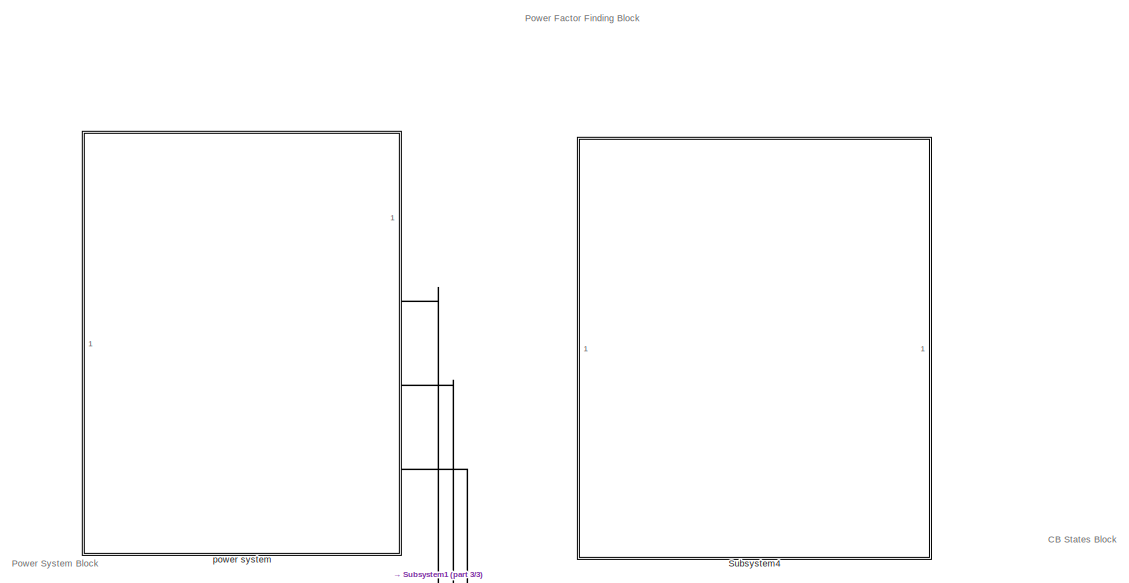
[diagram: root canvas - part 1/3, top left region]
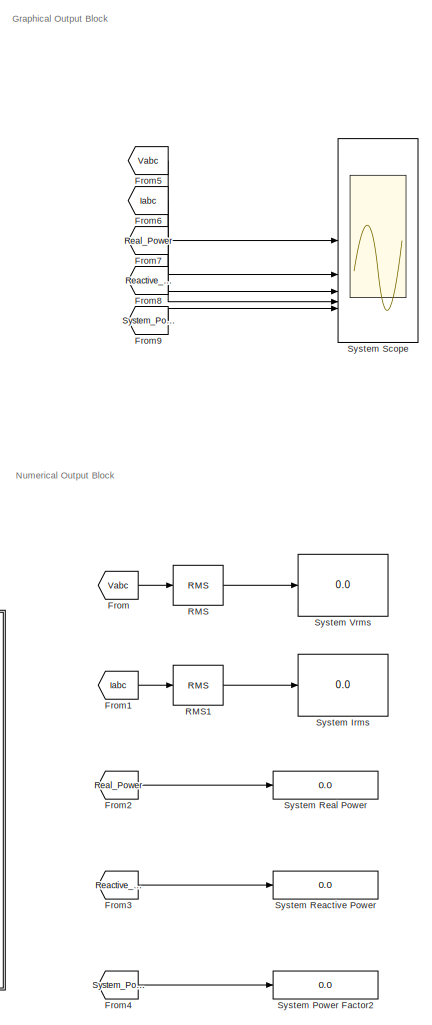
[diagram: root canvas - part 2/3, right side, full height]
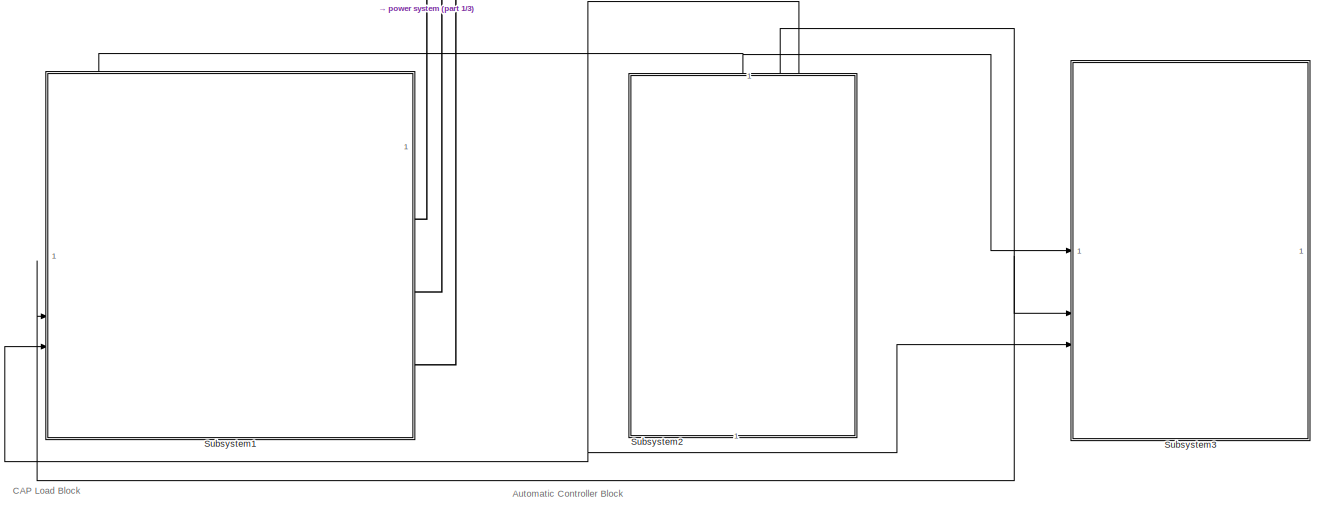
[diagram: root canvas - part 3/3, full width, bottom band]
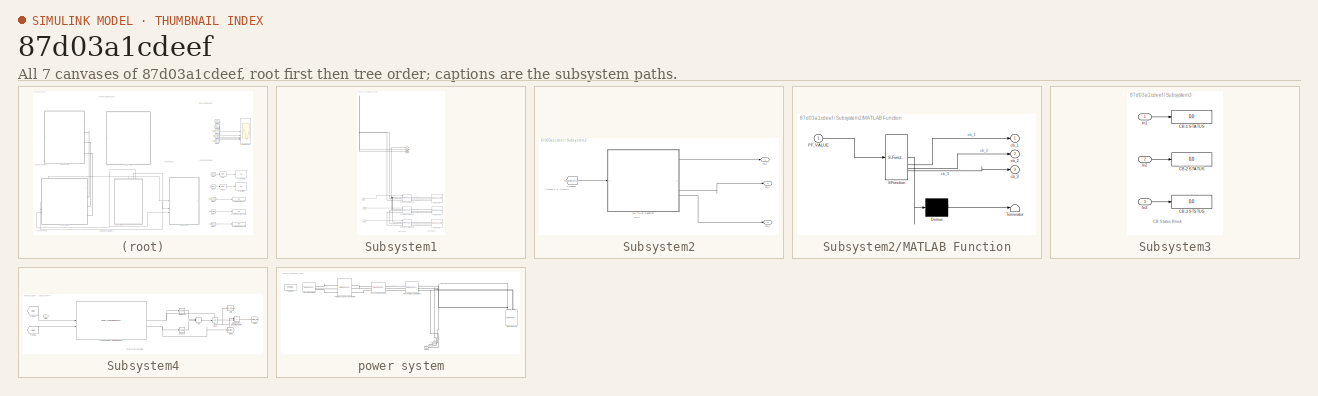
[diagram: thumbnail index - all 7 canvases of the model, root first then tree order]
MODEL slx_87d03a1cdeef
KIND model
CONFIG AbsTol = auto
CONFIG EnableMultiTasking = off
CONFIG FixedStep = auto
CONFIG MaxStep = auto
CONFIG MinStep = auto
CONFIG RelTol = 1e-3
CONFIG SampleTimeConstraint = Unconstrained
CONFIG SolverName = VariableStepAuto
CONFIG StartTime = 0.0
CONFIG StopTime = 50
BLOCK [From] From
  GotoTag = Vabc
  TagVisibility = global
BLOCK [From] From1
  GotoTag = Iabc
  TagVisibility = global
BLOCK [From] From2
  GotoTag = Real_Power
  TagVisibility = global
BLOCK [From] From3
  GotoTag = Reactive_Power
  TagVisibility = global
BLOCK [From] From4
  GotoTag = System_Power_factor
  TagVisibility = global
BLOCK [From] From5
  GotoTag = Vabc
  TagVisibility = global
BLOCK [From] From6
  GotoTag = Iabc
  TagVisibility = global
BLOCK [From] From7
  GotoTag = Real_Power
  TagVisibility = global
BLOCK [From] From8
  GotoTag = Reactive_Power
  TagVisibility = global
BLOCK [From] From9
  GotoTag = System_Power_factor
  TagVisibility = global
BLOCK [Reference] RMS  REF=spsRMSLib/RMS
  LibrarySourceBlock = sps_lib/Sensors and Measurements/RMS
  SourceBlock = spsRMSLib/RMS
  SourceType = RMS
BLOCK [Reference] RMS1  REF=spsRMSLib/RMS
  LibrarySourceBlock = sps_lib/Sensors and Measurements/RMS
  SourceBlock = spsRMSLib/RMS
  SourceType = RMS
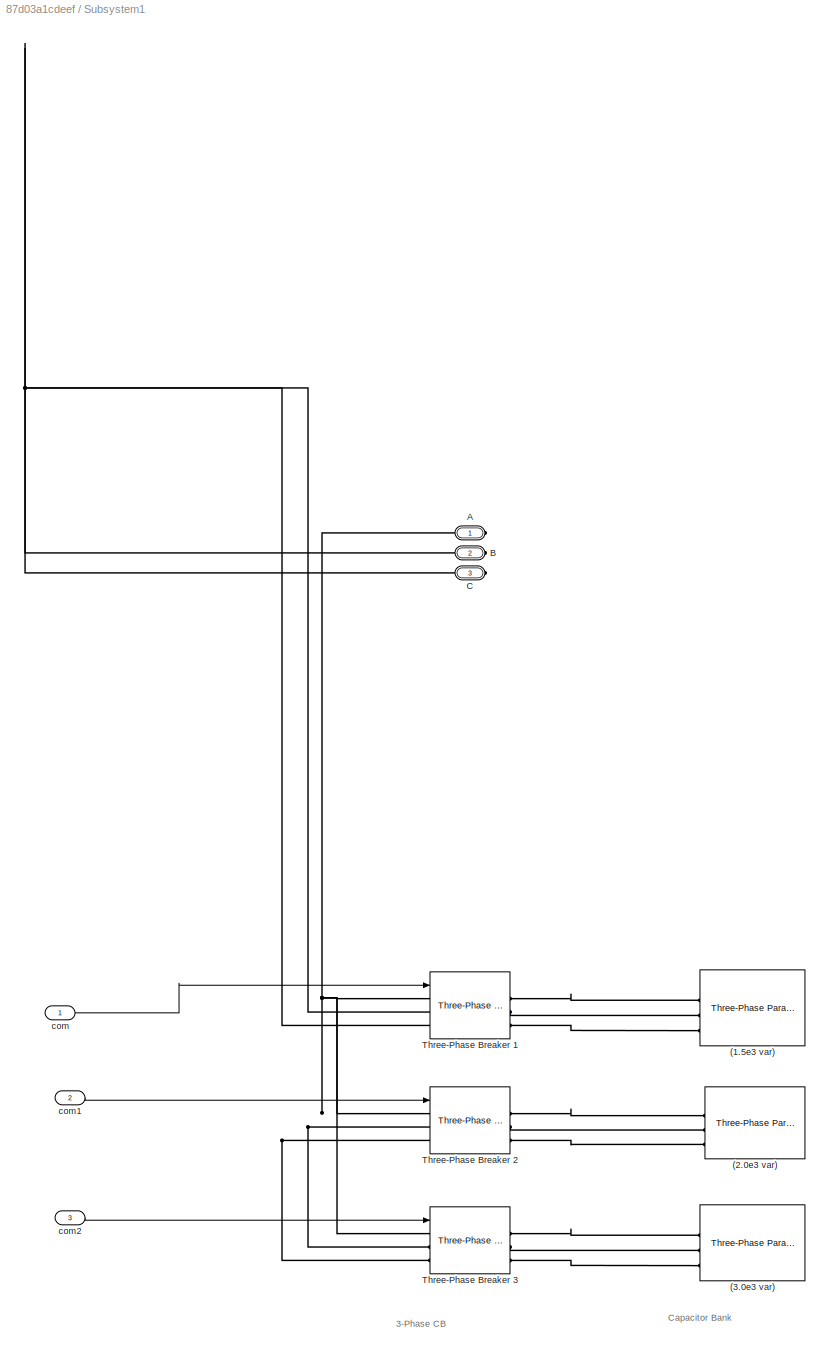
BLOCK [SubSystem] Subsystem1
BLOCK [Reference] Subsystem1/(1.5e3 var)  REF=spsThreePhaseParallelRLCLoadLib/Three-Phase
Parallel RLC Load
  AttributesFormatString = \n
  LibrarySourceBlock = sps_lib/Passives/Three-Phase\nParallel RLC Load
  NameLocation = right
  SourceBlock = spsThreePhaseParallelRLCLoadLib/Three-Phase\nParallel RLC Load
  SourceType = Three-Phase Parallel RLC Load
BLOCK [Reference] Subsystem1/(2.0e3 var)  REF=spsThreePhaseParallelRLCLoadLib/Three-Phase
Parallel RLC Load
  AttributesFormatString = \n
  LibrarySourceBlock = sps_lib/Passives/Three-Phase\nParallel RLC Load
  NameLocation = right
  SourceBlock = spsThreePhaseParallelRLCLoadLib/Three-Phase\nParallel RLC Load
  SourceType = Three-Phase Parallel RLC Load
BLOCK [Reference] Subsystem1/(3.0e3 var)  REF=spsThreePhaseParallelRLCLoadLib/Three-Phase
Parallel RLC Load
  AttributesFormatString = \n
  LibrarySourceBlock = sps_lib/Passives/Three-Phase\nParallel RLC Load
  NameLocation = right
  SourceBlock = spsThreePhaseParallelRLCLoadLib/Three-Phase\nParallel RLC Load
  SourceType = Three-Phase Parallel RLC Load
BLOCK [PMIOPort] Subsystem1/A
  Side = Right
BLOCK [PMIOPort] Subsystem1/B
  Port = 2
  Side = Right
BLOCK [PMIOPort] Subsystem1/C
  Port = 3
  Side = Right
BLOCK [Reference] Subsystem1/Three-Phase Breaker 1  REF=spsThreePhaseBreakerLib/Three-Phase Breaker
  LibrarySourceBlock = sps_lib/Power Grid Elements/Three-Phase Breaker
  SourceBlock = spsThreePhaseBreakerLib/Three-Phase Breaker
  SourceType = Three-Phase Breaker
BLOCK [Reference] Subsystem1/Three-Phase Breaker 2  REF=spsThreePhaseBreakerLib/Three-Phase Breaker
  LibrarySourceBlock = sps_lib/Power Grid Elements/Three-Phase Breaker
  SourceBlock = spsThreePhaseBreakerLib/Three-Phase Breaker
  SourceType = Three-Phase Breaker
BLOCK [Reference] Subsystem1/Three-Phase Breaker 3  REF=spsThreePhaseBreakerLib/Three-Phase Breaker
  LibrarySourceBlock = sps_lib/Power Grid Elements/Three-Phase Breaker
  SourceBlock = spsThreePhaseBreakerLib/Three-Phase Breaker
  SourceType = Three-Phase Breaker
BLOCK [Inport] Subsystem1/com
BLOCK [Inport] Subsystem1/com1
  Port = 2
BLOCK [Inport] Subsystem1/com2
  Port = 3
BLOCK [SubSystem] Subsystem2
  NameLocation = right
BLOCK [From] Subsystem2/From10
  GotoTag = System_Power_factor
  TagVisibility = global
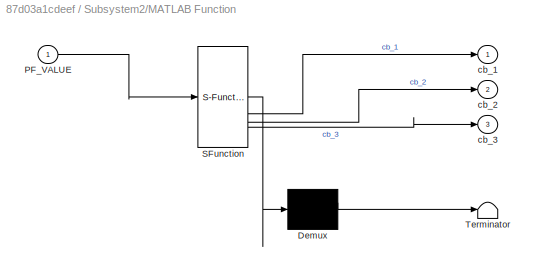
BLOCK [SubSystem] Subsystem2/MATLAB Function
  ErrorFcn = Stateflow.Translate.translate
  PermitHierarchicalResolution = ExplicitOnly
  SFBlockType = MATLAB Function
  TreatAsAtomicUnit = on
BLOCK [Demux] Subsystem2/MATLAB Function/ Demux 
  Outputs = 1
BLOCK [S-Function] Subsystem2/MATLAB Function/ SFunction 
  EnableBusSupport = on
  FunctionName = sf_sfun
  PortCounts = [1 4]
  SFcnIsStateOwnerBlock = off
  SFunctionDeploymentMode = off
  Tag = Stateflow S-Function 2
BLOCK [Terminator] Subsystem2/MATLAB Function/ Terminator 
BLOCK [Inport] Subsystem2/MATLAB Function/PF_VALUE
BLOCK [Outport] Subsystem2/MATLAB Function/cb_1
BLOCK [Outport] Subsystem2/MATLAB Function/cb_2
  Port = 2
BLOCK [Outport] Subsystem2/MATLAB Function/cb_3
  Port = 3
BLOCK [Outport] Subsystem2/cb_1
BLOCK [Outport] Subsystem2/cb_2
  Port = 2
BLOCK [Outport] Subsystem2/cb_3
  Port = 3
BLOCK [SubSystem] Subsystem3
BLOCK [Display] Subsystem3/CB-1 STATUS
  Decimation = 1
BLOCK [Display] Subsystem3/CB-2 STATUS
  Decimation = 1
BLOCK [Display] Subsystem3/CB-3 STSTUS
  Decimation = 1
BLOCK [Inport] Subsystem3/In1
BLOCK [Inport] Subsystem3/In2
  Port = 2
BLOCK [Inport] Subsystem3/In3
  Port = 3
BLOCK [SubSystem] Subsystem4
BLOCK [Reference] Subsystem4/3-PhasePower ( Instantaneous)  REF=spsPower3phInstantaneousLib/Power
(3ph, Instantaneous)
  LibrarySourceBlock = sps_lib/Sensors and Measurements/Power\n(3ph, Instantaneous)
  SourceBlock = spsPower3phInstantaneousLib/Power\n(3ph, Instantaneous)
  SourceType = Power (3ph, Instantaneous)
BLOCK [Sum] Subsystem4/Add
  IconShape = rectangular
BLOCK [From] Subsystem4/From11
  GotoTag = Vabc
  TagVisibility = global
BLOCK [From] Subsystem4/From12
  GotoTag = Iabc
  TagVisibility = global
BLOCK [Goto] Subsystem4/Goto
  GotoTag = Real_Power
  TagVisibility = global
BLOCK [Goto] Subsystem4/Goto1
  GotoTag = Reactive_Power
  TagVisibility = global
BLOCK [Goto] Subsystem4/Goto2
  GotoTag = System_Power_factor
  TagVisibility = global
BLOCK [Outport] Subsystem4/Out1
BLOCK [Product] Subsystem4/Real Power // Reactive Power
  Inputs = */
BLOCK [Sqrt] Subsystem4/Sqrt
BLOCK [Math] Subsystem4/Square
  Operator = square
BLOCK [Math] Subsystem4/Square1
  Operator = square
BLOCK [Display] System Irms
  Decimation = 1
BLOCK [Display] System Power Factor2
  Decimation = 1
BLOCK [Display] System Reactive Power
  Decimation = 1
  Format = long
BLOCK [Display] System Real Power
  Decimation = 1
BLOCK [Scope] System Scope
  Floating = off
  NumInputPorts = 5
  ScopeSpecificationString = Simulink.scopes.TimeScopeBlockCfg('CurrentConfiguration', extmgr.ConfigurationSet(extmgr.Configuration('Core','General UI',true,'FigureColor',[1 1 1]),extmgr.Configuration('Core','Source UI',true),extmgr.Configuration('Sources','WiredSimulink',true),extmgr.Configuration('Visuals','Time Domain',true,'SerializedDisplays',{struct('MinYLimReal','-422.65127','MaxYLimReal','422.61987','YLabelReal','','M...<+6022ch>
BLOCK [Display] System Vrms
  Decimation = 1
BLOCK [SubSystem] power system
  NameLocation = top
BLOCK [Reference] power system/3-PHASE LOAD  REF=spsThreePhaseParallelRLCLoadLib/Three-Phase
Parallel RLC Load
  AttributesFormatString = \n
  LibrarySourceBlock = sps_lib/Passives/Three-Phase\nParallel RLC Load
  SourceBlock = spsThreePhaseParallelRLCLoadLib/Three-Phase\nParallel RLC Load
  SourceType = Three-Phase Parallel RLC Load
BLOCK [Reference] power system/3-PHASE PI SECTION LINE  REF=spsThreePhasePISectionLineLib/Three-Phase
PI Section Line
  AttributesFormatString = \n
  LibrarySourceBlock = sps_lib/Power Grid Elements/Three-Phase\nPI Section Line
  SourceBlock = spsThreePhasePISectionLineLib/Three-Phase\nPI Section Line
  SourceType = Three-Phase PI Section Line
BLOCK [Reference] power system/3-PHASE SOURCE  REF=spsThreePhaseSourceLib/Three-Phase Source
  LibrarySourceBlock = sps_lib/Sources/Three-Phase Source
  SourceBlock = spsThreePhaseSourceLib/Three-Phase Source
  SourceType = Three-Phase Source
BLOCK [Reference] power system/3-PHASE V-I MEASUREMENT  REF=spsThreePhaseVIMeasurementLib/Three-Phase
V-I Measurement
  LibrarySourceBlock = sps_lib/Sensors and Measurements/Three-Phase\nV-I Measurement
  SourceBlock = spsThreePhaseVIMeasurementLib/Three-Phase\nV-I Measurement
  SourceType = Three-Phase VI Measurement
BLOCK [PMIOPort] power system/CONN3
  Port = 3
  Side = Left
BLOCK [Reference] power system/POWER-GUI  REF=sps_lib/powergui
  LibrarySourceBlock = sps_lib/powergui
  Priority = 1
  SourceBlock = sps_lib/powergui
  SourceType = PSB option menu block
BLOCK [Reference] power system/THREE-PHASE TRANSFORMER   REF=spsThreePhaseTransformerTwoWindingsLib/Three-Phase
Transformer
(Two Windings)
  LibrarySourceBlock = sps_lib/Power Grid Elements/Three-Phase\nTransformer\n(Two Windings)
  SourceBlock = spsThreePhaseTransformerTwoWindingsLib/Three-Phase\nTransformer\n(Two Windings)
  SourceType = Three-Phase Transformer (Two Windings)
BLOCK [PMIOPort] power system/a
  Side = Left
BLOCK [PMIOPort] power system/b
  Port = 2
  Side = Left
ANNOTATION (root): Power System Block
ANNOTATION (root): Automatic Controller Block
ANNOTATION (root): CAP Load Block
ANNOTATION (root): CB States Block
ANNOTATION (root): Graphical Output Block
ANNOTATION (root): Numerical Output Block
ANNOTATION (root): Power Factor Finding Block
ANNOTATION Subsystem1: Capacitor Bank
ANNOTATION Subsystem1: 3-Phase CB
ANNOTATION Subsystem2: System P.F to MCU
ANNOTATION Subsystem2: MCU
ANNOTATION Subsystem3: CB States Block
ANNOTATION Subsystem4: Power Factor Calculation
LINE From1:1 -> RMS1:1
LINE From2:1 -> System Real Power:1
LINE From3:1 -> System Reactive Power:1
LINE From4:1 -> System Power Factor2:1
LINE From5:1 -> System Scope:1
LINE From6:1 -> System Scope:2
LINE From7:1 -> System Scope:3
LINE From8:1 -> System Scope:4
LINE From9:1 -> System Scope:5
LINE From:1 -> RMS:1
LINE RMS1:1 -> System Irms:1
LINE RMS:1 -> System Vrms:1
LINE Subsystem1/com1:1 -> Subsystem1/Three-Phase Breaker 2:1
LINE Subsystem1/com2:1 -> Subsystem1/Three-Phase Breaker 3:1
LINE Subsystem1/com:1 -> Subsystem1/Three-Phase Breaker 1:1
LINE Subsystem2/From10:1 -> Subsystem2/MATLAB Function:1
LINE Subsystem2/MATLAB Function:1 -> Subsystem2/cb_1:1
LINE Subsystem2/MATLAB Function:2 -> Subsystem2/cb_2:1
LINE Subsystem2/MATLAB Function:3 -> Subsystem2/cb_3:1
NET Subsystem2:1 -> Subsystem1:1, Subsystem3:1
NET Subsystem2:2 -> Subsystem1:2, Subsystem3:2
NET Subsystem2:3 -> Subsystem1:3, Subsystem3:3
LINE Subsystem3/In1:1 -> Subsystem3/CB-1 STATUS:1
LINE Subsystem3/In2:1 -> Subsystem3/CB-2 STATUS:1
LINE Subsystem3/In3:1 -> Subsystem3/CB-3 STSTUS:1
NET Subsystem4/3-PhasePower ( Instantaneous):1 -> Subsystem4/Goto:1, Subsystem4/Real Power // Reactive Power:1, Subsystem4/Square1:1
NET Subsystem4/3-PhasePower ( Instantaneous):2 -> Subsystem4/Goto1:1, Subsystem4/Square:1
LINE Subsystem4/Add:1 -> Subsystem4/Sqrt:1
LINE Subsystem4/From11:1 -> Subsystem4/3-PhasePower ( Instantaneous):1
LINE Subsystem4/From12:1 -> Subsystem4/3-PhasePower ( Instantaneous):2
LINE Subsystem4/Real Power // Reactive Power:1 -> Subsystem4/Goto2:1
LINE Subsystem4/Sqrt:1 -> Subsystem4/Real Power // Reactive Power:2
LINE Subsystem4/Square1:1 -> Subsystem4/Add:1
LINE Subsystem4/Square:1 -> Subsystem4/Add:2
PLINE Subsystem1/(1.5e3 var):LConn1 -- Subsystem1/Three-Phase Breaker 1:RConn1
PLINE Subsystem1/(1.5e3 var):LConn2 -- Subsystem1/Three-Phase Breaker 1:RConn2
PLINE Subsystem1/(1.5e3 var):LConn3 -- Subsystem1/Three-Phase Breaker 1:RConn3
PLINE Subsystem1/(2.0e3 var):LConn1 -- Subsystem1/Three-Phase Breaker 2:RConn1
PLINE Subsystem1/(2.0e3 var):LConn2 -- Subsystem1/Three-Phase Breaker 2:RConn2
PLINE Subsystem1/(2.0e3 var):LConn3 -- Subsystem1/Three-Phase Breaker 2:RConn3
PLINE Subsystem1/(3.0e3 var):LConn1 -- Subsystem1/Three-Phase Breaker 3:RConn1
PLINE Subsystem1/(3.0e3 var):LConn2 -- Subsystem1/Three-Phase Breaker 3:RConn2
PLINE Subsystem1/(3.0e3 var):LConn3 -- Subsystem1/Three-Phase Breaker 3:RConn3
PNET net1: Subsystem1/A:RConn1 -- Subsystem1/Three-Phase Breaker 1:LConn1 -- Subsystem1/Three-Phase Breaker 2:LConn1 -- Subsystem1/Three-Phase Breaker 3:LConn1
PNET net2: Subsystem1/B:RConn1 -- Subsystem1/Three-Phase Breaker 1:LConn2 -- Subsystem1/Three-Phase Breaker 2:LConn2 -- Subsystem1/Three-Phase Breaker 3:LConn2
PNET net3: Subsystem1/C:RConn1 -- Subsystem1/Three-Phase Breaker 1:LConn3 -- Subsystem1/Three-Phase Breaker 2:LConn3 -- Subsystem1/Three-Phase Breaker 3:LConn3
PLINE Subsystem1:RConn1 -- power system:LConn1
PLINE Subsystem1:RConn2 -- power system:LConn2
PLINE Subsystem1:RConn3 -- power system:LConn3
PNET net4: power system/3-PHASE LOAD:LConn1 -- power system/3-PHASE V-I MEASUREMENT:RConn1 -- power system/a:RConn1
PNET net5: power system/3-PHASE LOAD:LConn2 -- power system/3-PHASE V-I MEASUREMENT:RConn2 -- power system/b:RConn1
PNET net6: power system/3-PHASE LOAD:LConn3 -- power system/3-PHASE V-I MEASUREMENT:RConn3 -- power system/CONN3:RConn1
PLINE power system/3-PHASE PI SECTION LINE:LConn1 -- power system/THREE-PHASE TRANSFORMER :RConn1
PLINE power system/3-PHASE PI SECTION LINE:LConn2 -- power system/THREE-PHASE TRANSFORMER :RConn2
PLINE power system/3-PHASE PI SECTION LINE:LConn3 -- power system/THREE-PHASE TRANSFORMER :RConn3
PLINE power system/3-PHASE PI SECTION LINE:RConn1 -- power system/3-PHASE V-I MEASUREMENT:LConn1
PLINE power system/3-PHASE PI SECTION LINE:RConn2 -- power system/3-PHASE V-I MEASUREMENT:LConn2
PLINE power system/3-PHASE PI SECTION LINE:RConn3 -- power system/3-PHASE V-I MEASUREMENT:LConn3
PLINE power system/3-PHASE SOURCE:RConn1 -- power system/THREE-PHASE TRANSFORMER :LConn1
PLINE power system/3-PHASE SOURCE:RConn2 -- power system/THREE-PHASE TRANSFORMER :LConn2
PLINE power system/3-PHASE SOURCE:RConn3 -- power system/THREE-PHASE TRANSFORMER :LConn3
note: NET lines group one-source signal fan-out (src -> all destinations, sorted); 1:1 wires keep LINE; PNET lines group multi-terminal physical nets as a canonical sorted terminal list (undirected conserving connections); 2-terminal nets keep the pairwise PLINE form
CHART Subsystem2/MATLAB Function states=1 transitions=1
  STATE_LABEL 'eML_blk_kernel()'
  STATE_LABEL 'SCRIPT:\nfunction[cb_1,cb_2,cb_3] = ARDUINO_UNO(PF_VALUE)\nif(PF_VALUE<=0.60)\n    cb_1=1;\n    cb_2=0;\n    cb_3=0;\nelseif(PF_VALUE<=0.75)\n    cb_1=0;\n    cb_2=1;\n    cb_3=0;\nelseif(PF_VALUE<=0.85)\n    cb_1=0;\n    cb_2=0;\n    cb_3=1;\nelse\n    cb_1=0;\n    cb_2=0;\n    cb_3=0;\n    \nend\n'
CHART  states=0 transitions=0
